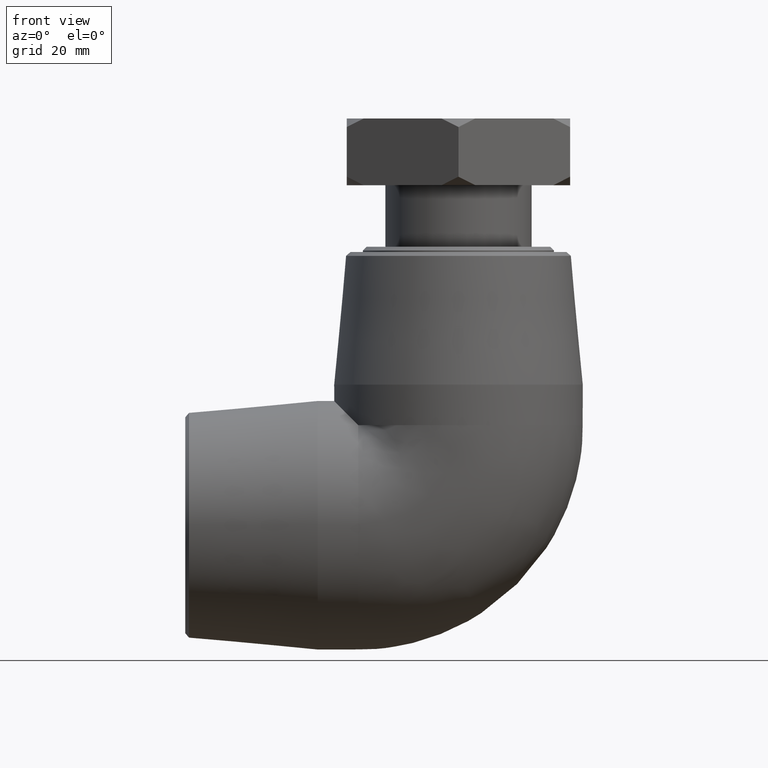
[diagram: clean part render]
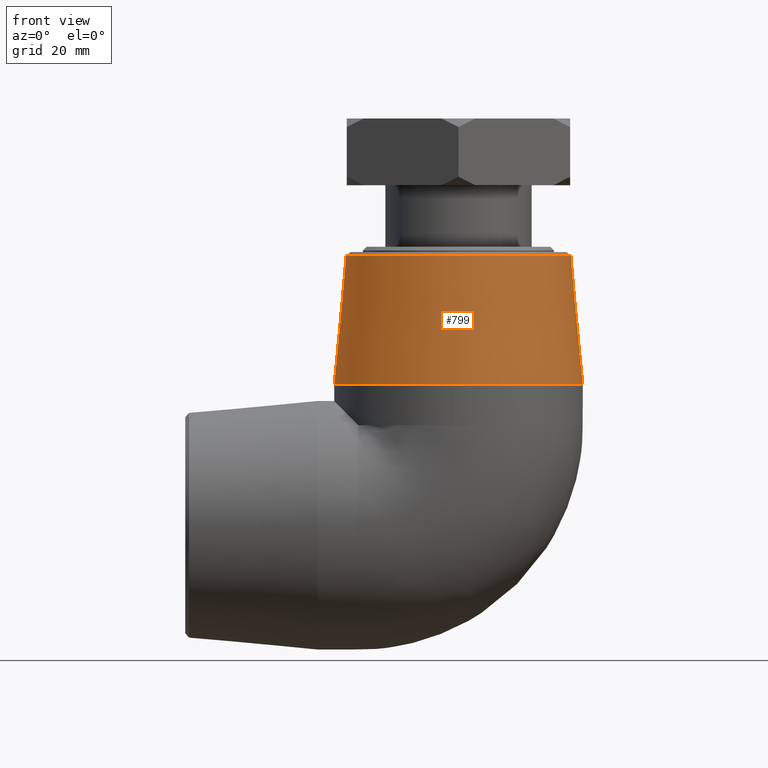
[diagram: same view with one face highlighted and labeled with its STEP entity id]
A machine part, front view. The second image highlights one B-rep face of the part: STEP entity #799.
In plain terms, the highlighted conical surface has half-angle 5.364 deg.
Its self-contained STEP definition (entity closure, byte-faithful):
#18=B_SPLINE_CURVE_WITH_KNOTS('',3,(#1435,#1436,#1437,#1438,#1439,#1440,
#1441,#1442,#1443,#1444,#1445,#1446,#1447,#1448,#1449,#1450,#1451,#1452,
#1453,#1454,#1455,#1456,#1457,#1458,#1459,#1460,#1461,#1462,#1463,#1464,
#1465,#1466,#1467,#1468),.UNSPECIFIED.,.T.,.F.,(4,2,2,2,2,2,2,2,2,2,2,2,
2,2,2,2,4),(0.,0.346005722043351,0.692011444086702,1.03993894678165,1.3878664494766,
1.73579395217155,2.0837214548665,2.42972717690985,2.7757328989532,3.14005919441716,
3.50438548988112,3.86229953056835,4.22021357125558,4.57812761194281,4.93604165263004,
5.300367948094,5.66469424355796),.UNSPECIFIED.);
#133=FACE_BOUND('',#270,.T.);
#134=FACE_BOUND('',#271,.T.);
#192=FACE_OUTER_BOUND('',#269,.T.);
#269=EDGE_LOOP('',(#687));
#270=EDGE_LOOP('',(#688));
#271=EDGE_LOOP('',(#689));
#351=CIRCLE('',#891,37.0177872811917);
#352=CIRCLE('',#894,41.);
#428=VERTEX_POINT('',#1428);
#429=VERTEX_POINT('',#1432);
#430=VERTEX_POINT('',#1434);
#524=EDGE_CURVE('',#428,#428,#351,.T.);
#525=EDGE_CURVE('',#429,#429,#352,.T.);
#526=EDGE_CURVE('',#430,#430,#18,.T.);
#687=ORIENTED_EDGE('',*,*,#525,.F.);
#688=ORIENTED_EDGE('',*,*,#526,.T.);
#689=ORIENTED_EDGE('',*,*,#524,.F.);
#762=CONICAL_SURFACE('',#893,38.95,5.3639542176943);
#799=ADVANCED_FACE('',(#192,#133,#134),#762,.T.);
#891=AXIS2_PLACEMENT_3D('',#1429,#1084,#1085);
#893=AXIS2_PLACEMENT_3D('',#1431,#1088,#1089);
#894=AXIS2_PLACEMENT_3D('',#1433,#1090,#1091);
#1084=DIRECTION('center_axis',(0.,0.,1.));
#1085=DIRECTION('ref_axis',(-6.12323399573677E-17,-1.,0.));
#1088=DIRECTION('center_axis',(6.12323399573677E-17,-1.5419764230905E-18,
-1.));
#1089=DIRECTION('ref_axis',(0.,1.,0.));
#1090=DIRECTION('center_axis',(6.12323399573677E-17,-1.5419764230905E-18,
-1.));
#1091=DIRECTION('ref_axis',(-1.,0.,-6.12323399573676E-17));
#1428=CARTESIAN_POINT('',(-9.96746717234499E-15,37.0177872811917,88.7455175743003));
#1429=CARTESIAN_POINT('Origin',(-7.70078143707355E-15,0.,88.7455175743003));
#1431=CARTESIAN_POINT('Origin',(-4.1740045070939E-15,-3.36664852374758E-17,
68.1666666666667));
#1432=CARTESIAN_POINT('',(-2.8370984180247E-15,41.,46.3333333333333));
#1433=CARTESIAN_POINT('Origin',(-2.8370984180247E-15,-6.73329704749516E-17,
46.3333333333333));
#1434=CARTESIAN_POINT('',(9.38542583207337,37.398527974994,72.339312871797));
#1435=CARTESIAN_POINT('Ctrl Pts',(9.38542583207336,37.3985279749941,72.3393128717971));
#1436=CARTESIAN_POINT('Ctrl Pts',(9.35918202023796,37.2939530789097,73.4876147170218));
#1437=CARTESIAN_POINT('Ctrl Pts',(9.10201372872263,37.2424863085223,74.7103167042037));
#1438=CARTESIAN_POINT('Ctrl Pts',(8.1170741914475,37.2542328824674,76.9507875969112));
#1439=CARTESIAN_POINT('Ctrl Pts',(7.3894502310545,37.3140150111509,77.9686379236323));
#1440=CARTESIAN_POINT('Ctrl Pts',(5.72912594144926,37.4524792789773,79.5732039826066));
#1441=CARTESIAN_POINT('Ctrl Pts',(4.68240947466268,37.5401933866601,80.2675861802235));
#1442=CARTESIAN_POINT('Ctrl Pts',(2.39781590284673,37.6685127783826,81.1874905751105));
#1443=CARTESIAN_POINT('Ctrl Pts',(1.15975834231649,37.7062640138496,81.4129605029022));
#1444=CARTESIAN_POINT('Ctrl Pts',(-1.1597583423165,37.7062640138496,81.4129605029022));
#1445=CARTESIAN_POINT('Ctrl Pts',(-2.39781590284673,37.6685127783826,81.1874905751105));
#1446=CARTESIAN_POINT('Ctrl Pts',(-4.68240947466268,37.5401933866602,80.2675861802236));
#1447=CARTESIAN_POINT('Ctrl Pts',(-5.72912594144927,37.4524792789773,79.5732039826066));
#1448=CARTESIAN_POINT('Ctrl Pts',(-7.38945023105451,37.3140150111509,77.9686379236323));
#1449=CARTESIAN_POINT('Ctrl Pts',(-8.11707419144751,37.2542328824674,76.9507875969112));
#1450=CARTESIAN_POINT('Ctrl Pts',(-9.10201372872264,37.2424863085223,74.7103167042037));
#1451=CARTESIAN_POINT('Ctrl Pts',(-9.35918202023797,37.2939530789097,73.4876147170218));
#1452=CARTESIAN_POINT('Ctrl Pts',(-9.41305922116411,37.5086399819977,71.1302098694695));
#1453=CARTESIAN_POINT('Ctrl Pts',(-9.18947377542954,37.6914792298821,69.8479610975961));
#1454=CARTESIAN_POINT('Ctrl Pts',(-8.23725622866267,38.1366545263766,67.4986144055875));
#1455=CARTESIAN_POINT('Ctrl Pts',(-7.50905864007235,38.3953020930227,66.4306429948522));
#1456=CARTESIAN_POINT('Ctrl Pts',(-5.83452179093109,38.8434328160888,64.7600124725114));
#1457=CARTESIAN_POINT('Ctrl Pts',(-4.78070402426102,39.0634893591952,64.0389447893487));
#1458=CARTESIAN_POINT('Ctrl Pts',(-2.46023658379362,39.3682772852435,63.0785406997474));
#1459=CARTESIAN_POINT('Ctrl Pts',(-1.19304680229077,39.4501738503251,62.8396118380008));
#1460=CARTESIAN_POINT('Ctrl Pts',(1.19304680229076,39.4501738503251,62.8396118380008));
#1461=CARTESIAN_POINT('Ctrl Pts',(2.46023658379361,39.3682772852435,63.0785406997474));
#1462=CARTESIAN_POINT('Ctrl Pts',(4.780704024261,39.0634893591952,64.0389447893487));
#1463=CARTESIAN_POINT('Ctrl Pts',(5.83452179093108,38.8434328160888,64.7600124725114));
#1464=CARTESIAN_POINT('Ctrl Pts',(7.50905864007233,38.3953020930227,66.4306429948522));
#1465=CARTESIAN_POINT('Ctrl Pts',(8.23725622866266,38.1366545263766,67.4986144055875));
#1466=CARTESIAN_POINT('Ctrl Pts',(9.18947377542952,37.6914792298821,69.8479610975961));
#1467=CARTESIAN_POINT('Ctrl Pts',(9.4130592211641,37.5086399819977,71.1302098694695));
#1468=CARTESIAN_POINT('Ctrl Pts',(9.38542583207336,37.398527974994,72.3393128717971));